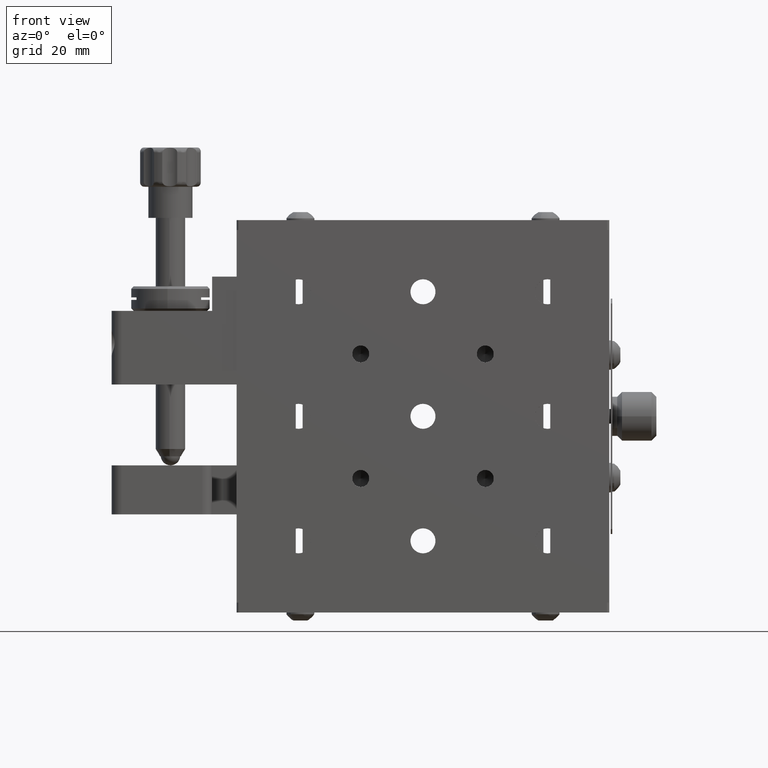
[diagram: clean part render]
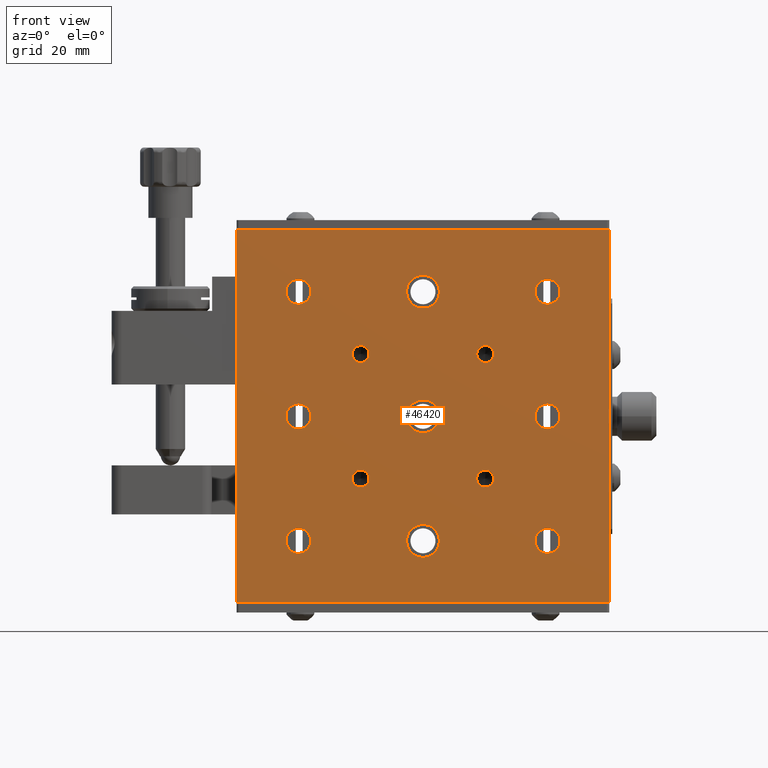
[diagram: same view with one face highlighted and labeled with its STEP entity id]
A machine part, front view. The second image highlights one B-rep face of the part: STEP entity #46420.
In plain terms, the highlighted planar face has unit normal (-0, 1, 0).
Its self-contained STEP definition (entity closure, byte-faithful):
#131 = AXIS2_PLACEMENT_3D ( 'NONE', #39027, #52934, #9376 ) ;
#187 = DIRECTION ( 'NONE',  ( 0.0000000000000000000, 0.0000000000000000000, -1.000000000000000000 ) ) ;
#415 = EDGE_CURVE ( 'NONE', #7052, #38406, #7741, .T. ) ;
#791 = AXIS2_PLACEMENT_3D ( 'NONE', #2908, #29307, #25035 ) ;
#810 = DIRECTION ( 'NONE',  ( -1.000000000000000000, 3.624795322936612100E-015, 0.0000000000000000000 ) ) ;
#838 = ORIENTED_EDGE ( 'NONE', *, *, #32204, .T. ) ;
#1010 = DIRECTION ( 'NONE',  ( -0.0000000000000000000, -1.000000000000000000, -0.0000000000000000000 ) ) ;
#1583 = VECTOR ( 'NONE', #31662, 1000.000000000000000 ) ;
#1848 = CARTESIAN_POINT ( 'NONE',  ( 36.14980746936877400, -15.15413436821245200, 85.70000000000004500 ) ) ;
#2021 = LINE ( 'NONE', #55293, #15959 ) ;
#2209 = ORIENTED_EDGE ( 'NONE', *, *, #54905, .F. ) ;
#2359 = AXIS2_PLACEMENT_3D ( 'NONE', #12185, #29482, #47377 ) ;
#2434 = DIRECTION ( 'NONE',  ( 3.541727096785987600E-015, 1.000000000000000000, 0.0000000000000000000 ) ) ;
#2535 = DIRECTION ( 'NONE',  ( -0.0000000000000000000, -1.000000000000000000, -0.0000000000000000000 ) ) ;
#2543 = CARTESIAN_POINT ( 'NONE',  ( -27.25019253063123200, -15.15413436821245500, 73.10000000000002300 ) ) ;
#2620 = EDGE_LOOP ( 'NONE', ( #48142, #838 ) ) ;
#2622 = ORIENTED_EDGE ( 'NONE', *, *, #37093, .T. ) ;
#2908 = CARTESIAN_POINT ( 'NONE',  ( -14.65019253063123200, -15.15413436821245900, 111.1000000000000400 ) ) ;
#3034 = CARTESIAN_POINT ( 'NONE',  ( 23.44980746936876400, -15.15413436821245500, 100.1272000000000200 ) ) ;
#3196 = EDGE_LOOP ( 'NONE', ( #31651, #48812 ) ) ;
#3566 = EDGE_CURVE ( 'NONE', #36856, #18490, #14258, .T. ) ;
#3631 = LINE ( 'NONE', #53478, #1583 ) ;
#4334 = EDGE_CURVE ( 'NONE', #12012, #8529, #28100, .T. ) ;
#4532 = DIRECTION ( 'NONE',  ( -0.0000000000000000000, -1.000000000000000000, -0.0000000000000000000 ) ) ;
#5439 = CARTESIAN_POINT ( 'NONE',  ( 23.44980746936876400, -15.15413436821245500, 123.8000000000000400 ) ) ;
#5451 = AXIS2_PLACEMENT_3D ( 'NONE', #43424, #53469, #48234 ) ;
#5575 = FACE_BOUND ( 'NONE', #9306, .T. ) ;
#5722 = CARTESIAN_POINT ( 'NONE',  ( 48.74980746936876800, -15.15413436821244600, 149.1000000000000500 ) ) ;
#5943 = ORIENTED_EDGE ( 'NONE', *, *, #29361, .F. ) ;
#6159 = VERTEX_POINT ( 'NONE', #47399 ) ;
#6504 = PLANE ( 'NONE',  #54409 ) ;
#6520 = ORIENTED_EDGE ( 'NONE', *, *, #35457, .F. ) ;
#6619 = DIRECTION ( 'NONE',  ( 0.0000000000000000000, 0.0000000000000000000, -1.000000000000000000 ) ) ;
#7037 = DIRECTION ( 'NONE',  ( -1.000000000000000000, 3.624795322936611300E-015, 0.0000000000000000000 ) ) ;
#7052 = VERTEX_POINT ( 'NONE', #49248 ) ;
#7299 = CARTESIAN_POINT ( 'NONE',  ( -1.950192530631233300, -15.15413436821245900, 96.67280000000003800 ) ) ;
#7666 = FACE_BOUND ( 'NONE', #14832, .T. ) ;
#7740 = VECTOR ( 'NONE', #41878, 1000.000000000000000 ) ;
#7741 = CIRCLE ( 'NONE', #44649, 2.552699999999990900 ) ;
#8286 = EDGE_CURVE ( 'NONE', #42248, #56294, #42469, .T. ) ;
#8529 = VERTEX_POINT ( 'NONE', #38249 ) ;
#8613 = DIRECTION ( 'NONE',  ( 3.541727096785987600E-015, 1.000000000000000000, 0.0000000000000000000 ) ) ;
#8652 = AXIS2_PLACEMENT_3D ( 'NONE', #11112, #50784, #10546 ) ;
#9021 = CARTESIAN_POINT ( 'NONE',  ( 10.74980746936873300, -15.15413436821259000, 136.5000000000000300 ) ) ;
#9072 = CIRCLE ( 'NONE', #9818, 2.552700000000005100 ) ;
#9082 = EDGE_CURVE ( 'NONE', #45851, #11529, #16651, .T. ) ;
#9195 = AXIS2_PLACEMENT_3D ( 'NONE', #45124, #13996, #810 ) ;
#9306 = EDGE_LOOP ( 'NONE', ( #41938, #2622 ) ) ;
#9376 = DIRECTION ( 'NONE',  ( -1.000000000000000000, 3.624795322936611300E-015, 0.0000000000000000000 ) ) ;
#9818 = AXIS2_PLACEMENT_3D ( 'NONE', #1848, #15234, #46164 ) ;
#9905 = DIRECTION ( 'NONE',  ( -0.0000000000000000000, -1.000000000000000000, -0.0000000000000000000 ) ) ;
#10046 = CIRCLE ( 'NONE', #31313, 3.350000000000000500 ) ;
#10183 = CIRCLE ( 'NONE', #8652, 2.552700000000005100 ) ;
#10314 = ORIENTED_EDGE ( 'NONE', *, *, #23474, .T. ) ;
#10394 = CIRCLE ( 'NONE', #19966, 3.350000000000000500 ) ;
#10410 = EDGE_CURVE ( 'NONE', #47451, #24480, #32067, .T. ) ;
#10546 = DIRECTION ( 'NONE',  ( 0.0000000000000000000, 0.0000000000000000000, -1.000000000000000000 ) ) ;
#10934 = AXIS2_PLACEMENT_3D ( 'NONE', #24086, #2535, #20443 ) ;
#10938 = DIRECTION ( 'NONE',  ( 0.0000000000000000000, 0.0000000000000000000, -1.000000000000000000 ) ) ;
#11112 = CARTESIAN_POINT ( 'NONE',  ( 36.14980746936877400, -15.15413436821245200, 85.70000000000004500 ) ) ;
#11208 = EDGE_CURVE ( 'NONE', #11759, #12183, #9072, .T. ) ;
#11453 = DIRECTION ( 'NONE',  ( 0.0000000000000000000, 0.0000000000000000000, -1.000000000000000000 ) ) ;
#11529 = VERTEX_POINT ( 'NONE', #12610 ) ;
#11657 = ORIENTED_EDGE ( 'NONE', *, *, #41827, .F. ) ;
#11759 = VERTEX_POINT ( 'NONE', #27154 ) ;
#12012 = VERTEX_POINT ( 'NONE', #33565 ) ;
#12183 = VERTEX_POINT ( 'NONE', #38877 ) ;
#12185 = CARTESIAN_POINT ( 'NONE',  ( 36.14980746936876700, -15.15413436821245200, 136.5000000000000300 ) ) ;
#12610 = CARTESIAN_POINT ( 'NONE',  ( -14.65019253063122700, -15.15413436821245900, 88.25270000000001900 ) ) ;
#13064 = ORIENTED_EDGE ( 'NONE', *, *, #51902, .F. ) ;
#13186 = ORIENTED_EDGE ( 'NONE', *, *, #11208, .F. ) ;
#13346 = DIRECTION ( 'NONE',  ( -0.0000000000000000000, -1.000000000000000000, -0.0000000000000000000 ) ) ;
#13350 = CARTESIAN_POINT ( 'NONE',  ( -14.65019253063123200, -15.15413436821245900, 108.5473000000000400 ) ) ;
#13764 = DIRECTION ( 'NONE',  ( -0.0000000000000000000, -1.000000000000000000, -0.0000000000000000000 ) ) ;
#13996 = DIRECTION ( 'NONE',  ( 3.541727096785987600E-015, 1.000000000000000000, 0.0000000000000000000 ) ) ;
#14028 = EDGE_LOOP ( 'NONE', ( #22475, #54844, #35237, #10314 ) ) ;
#14258 = CIRCLE ( 'NONE', #37381, 2.552699999999990900 ) ;
#14564 = CARTESIAN_POINT ( 'NONE',  ( 23.44980746936876400, -15.15413436821245500, 96.67280000000003800 ) ) ;
#14832 = EDGE_LOOP ( 'NONE', ( #21474, #6520 ) ) ;
#15234 = DIRECTION ( 'NONE',  ( -0.0000000000000000000, -1.000000000000000000, -0.0000000000000000000 ) ) ;
#15356 = FACE_BOUND ( 'NONE', #44617, .T. ) ;
#15397 = CARTESIAN_POINT ( 'NONE',  ( -14.65019253063123200, -15.15413436821245900, 111.1000000000000400 ) ) ;
#15422 = ORIENTED_EDGE ( 'NONE', *, *, #52684, .F. ) ;
#15527 = AXIS2_PLACEMENT_3D ( 'NONE', #42427, #46865, #55795 ) ;
#15819 = EDGE_CURVE ( 'NONE', #37210, #39952, #2021, .T. ) ;
#15959 = VECTOR ( 'NONE', #36928, 1000.000000000000000 ) ;
#16207 = ORIENTED_EDGE ( 'NONE', *, *, #50298, .F. ) ;
#16651 = CIRCLE ( 'NONE', #10934, 2.552699999999990900 ) ;
#16771 = FACE_OUTER_BOUND ( 'NONE', #14028, .T. ) ;
#17389 = AXIS2_PLACEMENT_3D ( 'NONE', #50204, #23926, #46683 ) ;
#17438 = FACE_BOUND ( 'NONE', #26862, .T. ) ;
#18052 = VERTEX_POINT ( 'NONE', #21068 ) ;
#18154 = FACE_BOUND ( 'NONE', #2620, .T. ) ;
#18490 = VERTEX_POINT ( 'NONE', #13350 ) ;
#18509 = ORIENTED_EDGE ( 'NONE', *, *, #20783, .F. ) ;
#18685 = VERTEX_POINT ( 'NONE', #24900 ) ;
#18728 = DIRECTION ( 'NONE',  ( -1.000000000000000000, 3.624795322936612100E-015, 0.0000000000000000000 ) ) ;
#19876 = EDGE_LOOP ( 'NONE', ( #2209, #52047 ) ) ;
#19962 = CIRCLE ( 'NONE', #52098, 2.552699999999990900 ) ;
#19966 = AXIS2_PLACEMENT_3D ( 'NONE', #29419, #2434, #7037 ) ;
#20206 = CARTESIAN_POINT ( 'NONE',  ( -14.65019253063122700, -15.15413436821245900, 83.14730000000003000 ) ) ;
#20443 = DIRECTION ( 'NONE',  ( 0.0000000000000000000, 0.0000000000000000000, -1.000000000000000000 ) ) ;
#20783 = EDGE_CURVE ( 'NONE', #18685, #6159, #49129, .T. ) ;
#20959 = VERTEX_POINT ( 'NONE', #45147 ) ;
#21068 = CARTESIAN_POINT ( 'NONE',  ( -14.65019253063123200, -15.15413436821245900, 139.0527000000000200 ) ) ;
#21474 = ORIENTED_EDGE ( 'NONE', *, *, #8286, .F. ) ;
#21550 = DIRECTION ( 'NONE',  ( 0.0000000000000000000, 0.0000000000000000000, -1.000000000000000000 ) ) ;
#22082 = DIRECTION ( 'NONE',  ( -1.000000000000000000, 3.624795322936611300E-015, 0.0000000000000000000 ) ) ;
#22222 = CIRCLE ( 'NONE', #5451, 1.727199999999984300 ) ;
#22237 = DIRECTION ( 'NONE',  ( -0.0000000000000000000, -1.000000000000000000, -0.0000000000000000000 ) ) ;
#22408 = EDGE_CURVE ( 'NONE', #38406, #7052, #43417, .T. ) ;
#22434 = CARTESIAN_POINT ( 'NONE',  ( -1.950192530631233100, -15.15413436821245900, 100.1272000000000200 ) ) ;
#22475 = ORIENTED_EDGE ( 'NONE', *, *, #29637, .T. ) ;
#22826 = VERTEX_POINT ( 'NONE', #35427 ) ;
#23143 = DIRECTION ( 'NONE',  ( 0.0000000000000000000, 0.0000000000000000000, -1.000000000000000000 ) ) ;
#23474 = EDGE_CURVE ( 'NONE', #37210, #40832, #49902, .T. ) ;
#23530 = DIRECTION ( 'NONE',  ( -0.0000000000000000000, -1.000000000000000000, -0.0000000000000000000 ) ) ;
#23834 = AXIS2_PLACEMENT_3D ( 'NONE', #44065, #52579, #44241 ) ;
#23926 = DIRECTION ( 'NONE',  ( -0.0000000000000000000, -1.000000000000000000, -0.0000000000000000000 ) ) ;
#24059 = VERTEX_POINT ( 'NONE', #52284 ) ;
#24086 = CARTESIAN_POINT ( 'NONE',  ( -14.65019253063122700, -15.15413436821245900, 85.70000000000003100 ) ) ;
#24324 = ORIENTED_EDGE ( 'NONE', *, *, #41612, .F. ) ;
#24480 = VERTEX_POINT ( 'NONE', #30603 ) ;
#24900 = CARTESIAN_POINT ( 'NONE',  ( 23.44980746936876400, -15.15413436821245500, 122.0728000000000600 ) ) ;
#25035 = DIRECTION ( 'NONE',  ( 0.0000000000000000000, 0.0000000000000000000, -1.000000000000000000 ) ) ;
#25109 = ORIENTED_EDGE ( 'NONE', *, *, #29173, .F. ) ;
#26176 = ORIENTED_EDGE ( 'NONE', *, *, #9082, .F. ) ;
#26265 = CIRCLE ( 'NONE', #30981, 1.727199999999984300 ) ;
#26296 = DIRECTION ( 'NONE',  ( 0.0000000000000000000, 0.0000000000000000000, -1.000000000000000000 ) ) ;
#26354 = CARTESIAN_POINT ( 'NONE',  ( 36.14980746936876700, -15.15413436821245200, 111.1000000000000400 ) ) ;
#26530 = DIRECTION ( 'NONE',  ( 3.541727096785987600E-015, 1.000000000000000000, 0.0000000000000000000 ) ) ;
#26862 = EDGE_LOOP ( 'NONE', ( #36115, #11657 ) ) ;
#26868 = EDGE_CURVE ( 'NONE', #24059, #22826, #51818, .T. ) ;
#27154 = CARTESIAN_POINT ( 'NONE',  ( 36.14980746936877400, -15.15413436821245200, 88.25270000000004700 ) ) ;
#27360 = CARTESIAN_POINT ( 'NONE',  ( -1.950192530631233300, -15.15413436821245900, 123.8000000000000400 ) ) ;
#27644 = EDGE_LOOP ( 'NONE', ( #26176, #5943 ) ) ;
#27839 = EDGE_CURVE ( 'NONE', #30130, #38257, #31073, .T. ) ;
#27970 = AXIS2_PLACEMENT_3D ( 'NONE', #53519, #36091, #18728 ) ;
#28100 = CIRCLE ( 'NONE', #9195, 3.349999999999999600 ) ;
#28588 = FACE_BOUND ( 'NONE', #3196, .T. ) ;
#28645 = CARTESIAN_POINT ( 'NONE',  ( -1.950192530631233300, -15.15413436821245900, 123.8000000000000400 ) ) ;
#28902 = DIRECTION ( 'NONE',  ( -1.224606353822377300E-016, 1.000000000000000000, 0.0000000000000000000 ) ) ;
#29173 = EDGE_CURVE ( 'NONE', #22826, #24059, #50114, .T. ) ;
#29307 = DIRECTION ( 'NONE',  ( -0.0000000000000000000, -1.000000000000000000, -0.0000000000000000000 ) ) ;
#29361 = EDGE_CURVE ( 'NONE', #11529, #45851, #48712, .T. ) ;
#29419 = CARTESIAN_POINT ( 'NONE',  ( 10.74980746936873300, -15.15413436821259000, 136.5000000000000300 ) ) ;
#29482 = DIRECTION ( 'NONE',  ( -0.0000000000000000000, -1.000000000000000000, -0.0000000000000000000 ) ) ;
#29637 = EDGE_CURVE ( 'NONE', #40832, #20959, #48649, .T. ) ;
#29747 = EDGE_CURVE ( 'NONE', #18052, #39890, #52106, .T. ) ;
#29942 = FACE_BOUND ( 'NONE', #53754, .T. ) ;
#30130 = VERTEX_POINT ( 'NONE', #32177 ) ;
#30603 = CARTESIAN_POINT ( 'NONE',  ( 14.09980746936872900, -15.15413436821260300, 111.1000000000000400 ) ) ;
#30604 = FACE_BOUND ( 'NONE', #43290, .T. ) ;
#30744 = ORIENTED_EDGE ( 'NONE', *, *, #26868, .F. ) ;
#30981 = AXIS2_PLACEMENT_3D ( 'NONE', #52134, #34539, #56598 ) ;
#31073 = CIRCLE ( 'NONE', #51786, 3.350000000000000500 ) ;
#31313 = AXIS2_PLACEMENT_3D ( 'NONE', #52805, #26530, #43916 ) ;
#31491 = CARTESIAN_POINT ( 'NONE',  ( -14.65019253063122700, -15.15413436821245900, 85.70000000000003100 ) ) ;
#31651 = ORIENTED_EDGE ( 'NONE', *, *, #10410, .T. ) ;
#31662 = DIRECTION ( 'NONE',  ( -0.0000000000000000000, -0.0000000000000000000, -1.000000000000000000 ) ) ;
#31839 = AXIS2_PLACEMENT_3D ( 'NONE', #5439, #1010, #41291 ) ;
#32067 = CIRCLE ( 'NONE', #131, 3.350000000000000500 ) ;
#32177 = CARTESIAN_POINT ( 'NONE',  ( 7.399807469368732300, -15.15413436821257800, 136.5000000000000300 ) ) ;
#32204 = EDGE_CURVE ( 'NONE', #8529, #12012, #54517, .T. ) ;
#32323 = CARTESIAN_POINT ( 'NONE',  ( -14.65019253063123200, -15.15413436821245900, 113.6527000000000200 ) ) ;
#33040 = DIRECTION ( 'NONE',  ( -0.0000000000000000000, -1.000000000000000000, -0.0000000000000000000 ) ) ;
#33443 = EDGE_CURVE ( 'NONE', #24480, #47451, #10046, .T. ) ;
#33565 = CARTESIAN_POINT ( 'NONE',  ( 7.399807469368727000, -15.15413436821257800, 85.70000000000004500 ) ) ;
#33676 = DIRECTION ( 'NONE',  ( -1.000000000000000000, -1.224606353822377300E-016, 0.0000000000000000000 ) ) ;
#34539 = DIRECTION ( 'NONE',  ( -0.0000000000000000000, -1.000000000000000000, -0.0000000000000000000 ) ) ;
#34577 = EDGE_CURVE ( 'NONE', #39952, #20959, #3631, .T. ) ;
#34627 = CIRCLE ( 'NONE', #791, 2.552699999999990900 ) ;
#34954 = CARTESIAN_POINT ( 'NONE',  ( -27.25019253063123200, -15.15413436821245500, 149.1000000000000500 ) ) ;
#35237 = ORIENTED_EDGE ( 'NONE', *, *, #15819, .F. ) ;
#35427 = CARTESIAN_POINT ( 'NONE',  ( -1.950192530631233300, -15.15413436821245900, 122.0728000000000600 ) ) ;
#35457 = EDGE_CURVE ( 'NONE', #56294, #42248, #19962, .T. ) ;
#35566 = VERTEX_POINT ( 'NONE', #3034 ) ;
#36091 = DIRECTION ( 'NONE',  ( 3.541727096785987600E-015, 1.000000000000000000, 0.0000000000000000000 ) ) ;
#36115 = ORIENTED_EDGE ( 'NONE', *, *, #47221, .F. ) ;
#36423 = CARTESIAN_POINT ( 'NONE',  ( 23.44980746936876400, -15.15413436821245500, 98.40000000000003400 ) ) ;
#36774 = FACE_BOUND ( 'NONE', #19876, .T. ) ;
#36856 = VERTEX_POINT ( 'NONE', #32323 ) ;
#36928 = DIRECTION ( 'NONE',  ( 1.000000000000000000, 1.224606353822377300E-016, 0.0000000000000000000 ) ) ;
#37093 = EDGE_CURVE ( 'NONE', #38257, #30130, #10394, .T. ) ;
#37210 = VERTEX_POINT ( 'NONE', #34954 ) ;
#37351 = CIRCLE ( 'NONE', #48266, 1.727199999999984300 ) ;
#37381 = AXIS2_PLACEMENT_3D ( 'NONE', #15397, #38029, #6619 ) ;
#37481 = VECTOR ( 'NONE', #48071, 1000.000000000000000 ) ;
#37913 = CARTESIAN_POINT ( 'NONE',  ( 36.14980746936876700, -15.15413436821245200, 133.9473000000000400 ) ) ;
#37920 = CARTESIAN_POINT ( 'NONE',  ( -27.25019253063123200, -15.15413436821245500, 149.1000000000000500 ) ) ;
#38029 = DIRECTION ( 'NONE',  ( -0.0000000000000000000, -1.000000000000000000, -0.0000000000000000000 ) ) ;
#38249 = CARTESIAN_POINT ( 'NONE',  ( 14.09980746936872700, -15.15413436821260300, 85.70000000000004500 ) ) ;
#38257 = VERTEX_POINT ( 'NONE', #50278 ) ;
#38406 = VERTEX_POINT ( 'NONE', #51217 ) ;
#38456 = EDGE_LOOP ( 'NONE', ( #15422, #13186 ) ) ;
#38745 = AXIS2_PLACEMENT_3D ( 'NONE', #27360, #13764, #187 ) ;
#38877 = CARTESIAN_POINT ( 'NONE',  ( 36.14980746936877400, -15.15413436821245200, 83.14730000000003000 ) ) ;
#39027 = CARTESIAN_POINT ( 'NONE',  ( 10.74980746936872800, -15.15413436821259000, 111.1000000000000400 ) ) ;
#39307 = DIRECTION ( 'NONE',  ( 0.0000000000000000000, 0.0000000000000000000, -1.000000000000000000 ) ) ;
#39546 = FACE_BOUND ( 'NONE', #38456, .T. ) ;
#39890 = VERTEX_POINT ( 'NONE', #53388 ) ;
#39952 = VERTEX_POINT ( 'NONE', #5722 ) ;
#40089 = ORIENTED_EDGE ( 'NONE', *, *, #3566, .F. ) ;
#40502 = AXIS2_PLACEMENT_3D ( 'NONE', #36423, #9905, #11453 ) ;
#40832 = VERTEX_POINT ( 'NONE', #57465 ) ;
#41291 = DIRECTION ( 'NONE',  ( 0.0000000000000000000, 0.0000000000000000000, -1.000000000000000000 ) ) ;
#41553 = AXIS2_PLACEMENT_3D ( 'NONE', #54256, #23530, #23143 ) ;
#41612 = EDGE_CURVE ( 'NONE', #18490, #36856, #34627, .T. ) ;
#41827 = EDGE_CURVE ( 'NONE', #50253, #45101, #37351, .T. ) ;
#41878 = DIRECTION ( 'NONE',  ( 1.000000000000000000, 1.224606353822377300E-016, 0.0000000000000000000 ) ) ;
#41938 = ORIENTED_EDGE ( 'NONE', *, *, #27839, .T. ) ;
#42248 = VERTEX_POINT ( 'NONE', #37913 ) ;
#42427 = CARTESIAN_POINT ( 'NONE',  ( -14.65019253063123200, -15.15413436821245900, 136.5000000000000300 ) ) ;
#42429 = EDGE_LOOP ( 'NONE', ( #46072, #44431 ) ) ;
#42469 = CIRCLE ( 'NONE', #2359, 2.552699999999990900 ) ;
#43123 = EDGE_CURVE ( 'NONE', #35566, #44894, #55232, .T. ) ;
#43290 = EDGE_LOOP ( 'NONE', ( #24324, #40089 ) ) ;
#43417 = CIRCLE ( 'NONE', #41553, 2.552699999999990900 ) ;
#43424 = CARTESIAN_POINT ( 'NONE',  ( -1.950192530631233300, -15.15413436821245900, 98.40000000000003400 ) ) ;
#43575 = CARTESIAN_POINT ( 'NONE',  ( 36.14980746936876700, -15.15413436821245200, 139.0527000000000200 ) ) ;
#43916 = DIRECTION ( 'NONE',  ( -1.000000000000000000, 3.624795322936611300E-015, 0.0000000000000000000 ) ) ;
#44065 = CARTESIAN_POINT ( 'NONE',  ( 23.44980746936876400, -15.15413436821245500, 98.40000000000003400 ) ) ;
#44200 = DIRECTION ( 'NONE',  ( 0.0000000000000000000, 0.0000000000000000000, -1.000000000000000000 ) ) ;
#44241 = DIRECTION ( 'NONE',  ( 0.0000000000000000000, 0.0000000000000000000, -1.000000000000000000 ) ) ;
#44431 = ORIENTED_EDGE ( 'NONE', *, *, #22408, .F. ) ;
#44615 = CARTESIAN_POINT ( 'NONE',  ( 36.14980746936876700, -15.15413436821245200, 136.5000000000000300 ) ) ;
#44617 = EDGE_LOOP ( 'NONE', ( #18509, #13064 ) ) ;
#44649 = AXIS2_PLACEMENT_3D ( 'NONE', #26354, #57260, #21550 ) ;
#44729 = EDGE_LOOP ( 'NONE', ( #25109, #30744 ) ) ;
#44894 = VERTEX_POINT ( 'NONE', #14564 ) ;
#45101 = VERTEX_POINT ( 'NONE', #7299 ) ;
#45124 = CARTESIAN_POINT ( 'NONE',  ( 10.74980746936872600, -15.15413436821259000, 85.70000000000004500 ) ) ;
#45147 = CARTESIAN_POINT ( 'NONE',  ( 48.74980746936876800, -15.15413436821244600, 73.10000000000002300 ) ) ;
#45851 = VERTEX_POINT ( 'NONE', #20206 ) ;
#46072 = ORIENTED_EDGE ( 'NONE', *, *, #415, .F. ) ;
#46164 = DIRECTION ( 'NONE',  ( 0.0000000000000000000, 0.0000000000000000000, -1.000000000000000000 ) ) ;
#46243 = AXIS2_PLACEMENT_3D ( 'NONE', #31491, #4532, #44200 ) ;
#46420 = ADVANCED_FACE ( 'NONE', ( #30604, #48516, #39546, #53429, #36774, #7666, #17438, #29942, #15356, #52035, #18154, #28588, #5575, #16771 ), #6504, .F. ) ;
#46683 = DIRECTION ( 'NONE',  ( 0.0000000000000000000, 0.0000000000000000000, -1.000000000000000000 ) ) ;
#46865 = DIRECTION ( 'NONE',  ( -0.0000000000000000000, -1.000000000000000000, -0.0000000000000000000 ) ) ;
#47221 = EDGE_CURVE ( 'NONE', #45101, #50253, #22222, .T. ) ;
#47377 = DIRECTION ( 'NONE',  ( 0.0000000000000000000, 0.0000000000000000000, -1.000000000000000000 ) ) ;
#47399 = CARTESIAN_POINT ( 'NONE',  ( 23.44980746936876400, -15.15413436821245500, 125.5272000000000400 ) ) ;
#47451 = VERTEX_POINT ( 'NONE', #54426 ) ;
#48071 = DIRECTION ( 'NONE',  ( -0.0000000000000000000, -0.0000000000000000000, -1.000000000000000000 ) ) ;
#48142 = ORIENTED_EDGE ( 'NONE', *, *, #4334, .T. ) ;
#48234 = DIRECTION ( 'NONE',  ( 0.0000000000000000000, 0.0000000000000000000, -1.000000000000000000 ) ) ;
#48266 = AXIS2_PLACEMENT_3D ( 'NONE', #52636, #13346, #39307 ) ;
#48516 = FACE_BOUND ( 'NONE', #27644, .T. ) ;
#48649 = LINE ( 'NONE', #2543, #7740 ) ;
#48712 = CIRCLE ( 'NONE', #46243, 2.552699999999990900 ) ;
#48812 = ORIENTED_EDGE ( 'NONE', *, *, #33443, .T. ) ;
#49129 = CIRCLE ( 'NONE', #31839, 1.727199999999984300 ) ;
#49248 = CARTESIAN_POINT ( 'NONE',  ( 36.14980746936876700, -15.15413436821245200, 108.5473000000000400 ) ) ;
#49902 = LINE ( 'NONE', #56981, #37481 ) ;
#50114 = CIRCLE ( 'NONE', #56272, 1.727199999999984300 ) ;
#50204 = CARTESIAN_POINT ( 'NONE',  ( -14.65019253063123200, -15.15413436821245900, 136.5000000000000300 ) ) ;
#50253 = VERTEX_POINT ( 'NONE', #22434 ) ;
#50278 = CARTESIAN_POINT ( 'NONE',  ( 14.09980746936873400, -15.15413436821260300, 136.5000000000000300 ) ) ;
#50298 = EDGE_CURVE ( 'NONE', #44894, #35566, #56507, .T. ) ;
#50784 = DIRECTION ( 'NONE',  ( -0.0000000000000000000, -1.000000000000000000, -0.0000000000000000000 ) ) ;
#51217 = CARTESIAN_POINT ( 'NONE',  ( 36.14980746936876700, -15.15413436821245200, 113.6527000000000200 ) ) ;
#51786 = AXIS2_PLACEMENT_3D ( 'NONE', #9021, #8613, #22082 ) ;
#51818 = CIRCLE ( 'NONE', #38745, 1.727199999999984300 ) ;
#51902 = EDGE_CURVE ( 'NONE', #6159, #18685, #26265, .T. ) ;
#52035 = FACE_BOUND ( 'NONE', #44729, .T. ) ;
#52047 = ORIENTED_EDGE ( 'NONE', *, *, #29747, .F. ) ;
#52098 = AXIS2_PLACEMENT_3D ( 'NONE', #44615, #22237, #26296 ) ;
#52106 = CIRCLE ( 'NONE', #15527, 2.552699999999990900 ) ;
#52134 = CARTESIAN_POINT ( 'NONE',  ( 23.44980746936876400, -15.15413436821245500, 123.8000000000000400 ) ) ;
#52284 = CARTESIAN_POINT ( 'NONE',  ( -1.950192530631233100, -15.15413436821245900, 125.5272000000000400 ) ) ;
#52579 = DIRECTION ( 'NONE',  ( -0.0000000000000000000, -1.000000000000000000, -0.0000000000000000000 ) ) ;
#52636 = CARTESIAN_POINT ( 'NONE',  ( -1.950192530631233300, -15.15413436821245900, 98.40000000000003400 ) ) ;
#52684 = EDGE_CURVE ( 'NONE', #12183, #11759, #10183, .T. ) ;
#52805 = CARTESIAN_POINT ( 'NONE',  ( 10.74980746936872800, -15.15413436821259000, 111.1000000000000400 ) ) ;
#52934 = DIRECTION ( 'NONE',  ( 3.541727096785987600E-015, 1.000000000000000000, 0.0000000000000000000 ) ) ;
#53388 = CARTESIAN_POINT ( 'NONE',  ( -14.65019253063123200, -15.15413436821245900, 133.9473000000000400 ) ) ;
#53429 = FACE_BOUND ( 'NONE', #42429, .T. ) ;
#53469 = DIRECTION ( 'NONE',  ( -0.0000000000000000000, -1.000000000000000000, -0.0000000000000000000 ) ) ;
#53478 = CARTESIAN_POINT ( 'NONE',  ( 48.74980746936876800, -15.15413436821244600, 149.1000000000000500 ) ) ;
#53519 = CARTESIAN_POINT ( 'NONE',  ( 10.74980746936872600, -15.15413436821259000, 85.70000000000004500 ) ) ;
#53754 = EDGE_LOOP ( 'NONE', ( #16207, #55695 ) ) ;
#54256 = CARTESIAN_POINT ( 'NONE',  ( 36.14980746936876700, -15.15413436821245200, 111.1000000000000400 ) ) ;
#54409 = AXIS2_PLACEMENT_3D ( 'NONE', #37920, #28902, #33676 ) ;
#54426 = CARTESIAN_POINT ( 'NONE',  ( 7.399807469368727900, -15.15413436821257800, 111.1000000000000400 ) ) ;
#54517 = CIRCLE ( 'NONE', #27970, 3.349999999999999600 ) ;
#54844 = ORIENTED_EDGE ( 'NONE', *, *, #34577, .F. ) ;
#54905 = EDGE_CURVE ( 'NONE', #39890, #18052, #55727, .T. ) ;
#55232 = CIRCLE ( 'NONE', #40502, 1.727199999999984300 ) ;
#55293 = CARTESIAN_POINT ( 'NONE',  ( -27.25019253063123200, -15.15413436821245500, 149.1000000000000500 ) ) ;
#55695 = ORIENTED_EDGE ( 'NONE', *, *, #43123, .F. ) ;
#55727 = CIRCLE ( 'NONE', #17389, 2.552699999999990900 ) ;
#55795 = DIRECTION ( 'NONE',  ( 0.0000000000000000000, 0.0000000000000000000, -1.000000000000000000 ) ) ;
#56272 = AXIS2_PLACEMENT_3D ( 'NONE', #28645, #33040, #10938 ) ;
#56294 = VERTEX_POINT ( 'NONE', #43575 ) ;
#56507 = CIRCLE ( 'NONE', #23834, 1.727199999999984300 ) ;
#56598 = DIRECTION ( 'NONE',  ( 0.0000000000000000000, 0.0000000000000000000, -1.000000000000000000 ) ) ;
#56981 = CARTESIAN_POINT ( 'NONE',  ( -27.25019253063123200, -15.15413436821245500, 149.1000000000000500 ) ) ;
#57260 = DIRECTION ( 'NONE',  ( -0.0000000000000000000, -1.000000000000000000, -0.0000000000000000000 ) ) ;
#57465 = CARTESIAN_POINT ( 'NONE',  ( -27.25019253063123200, -15.15413436821245500, 73.10000000000002300 ) ) ;